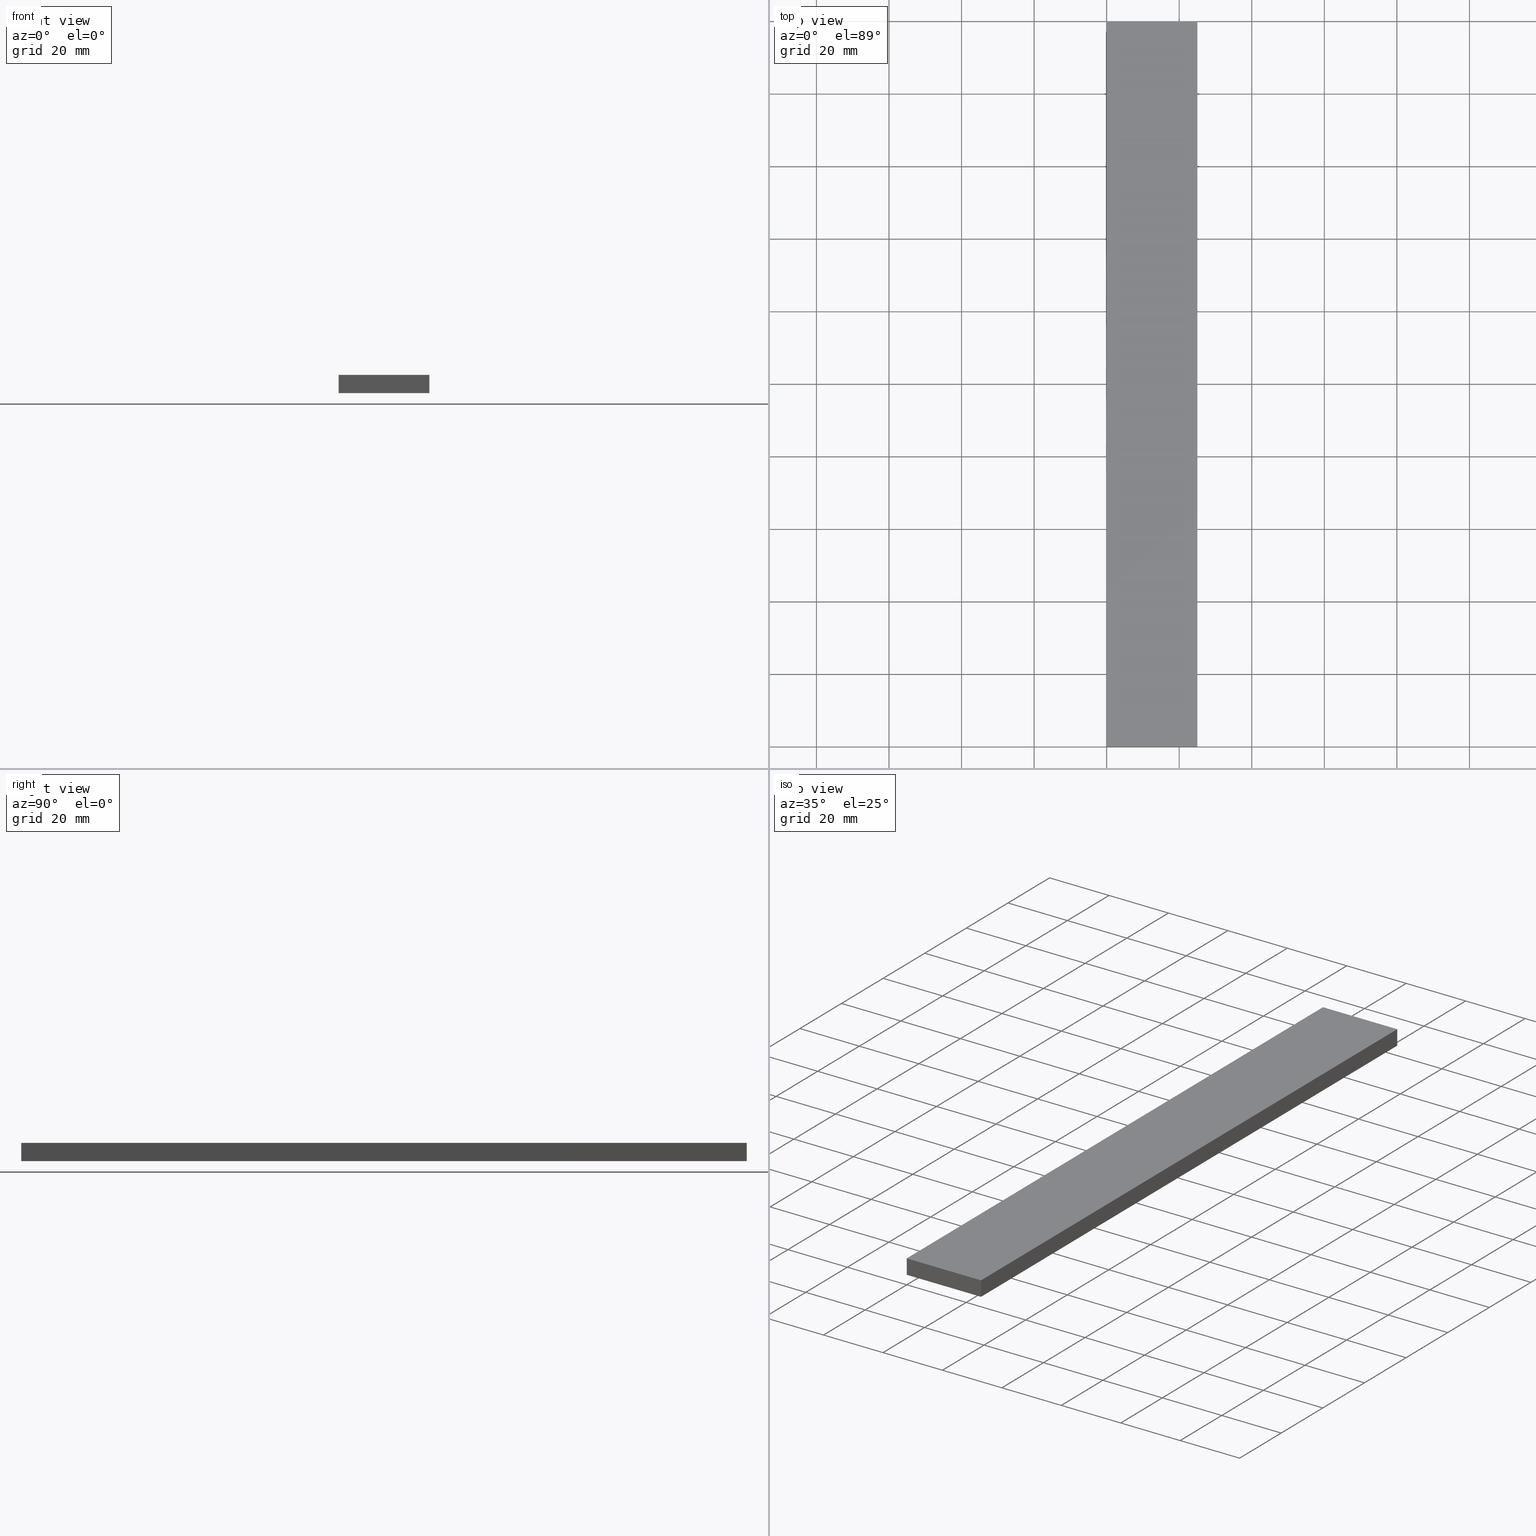
[diagram: canonical four-view strip — front | top / right | iso, engineering-drawing reading convention]
A machine part, canonical four-view strip (front | top / right | iso — engineering-drawing reading convention). The complete STEP part file that produces these views, byte-faithful:
ISO-10303-21;
HEADER;
FILE_DESCRIPTION (( 'STEP AP214' ),
    '1' );
FILE_NAME ('TM_340W_5.STEP',
    '2016-05-09T07:24:44',
    ( '' ),
    ( '' ),
    'SwSTEP 2.0',
    'SolidWorks 2015',
    '' );
FILE_SCHEMA (( 'AUTOMOTIVE_DESIGN' ));
ENDSEC;

DATA;
#1 = COLOUR_RGB ( '',0.7921568627450980000, 0.8196078431372548800, 0.9333333333333333500 ) ;
#2 = PRODUCT_DEFINITION_SHAPE ( 'NONE', 'NONE',  #239 ) ;
#3 = PRODUCT ( 'TM_340W_5', 'TM_340W_5', '', ( #109 ) ) ;
#4 = ORIENTED_EDGE ( 'NONE', *, *, #191, .F. ) ;
#5 = CARTESIAN_POINT ( 'NONE',  ( 25.00000000000000000, 0.0000000000000000000, 5.000000000000000000 ) ) ;
#6 = EDGE_CURVE ( 'NONE', #119, #28, #224, .T. ) ;
#7 =( GEOMETRIC_REPRESENTATION_CONTEXT ( 3 ) GLOBAL_UNCERTAINTY_ASSIGNED_CONTEXT ( ( #51 ) ) GLOBAL_UNIT_ASSIGNED_CONTEXT ( ( #80, #79, #78 ) ) REPRESENTATION_CONTEXT ( 'NONE', 'WORKASPACE' ) );
#8 = APPLICATION_CONTEXT ( 'automotive_design' ) ;
#9 = ORIENTED_EDGE ( 'NONE', *, *, #191, .T. ) ;
#10 = FILL_AREA_STYLE ('',( #177 ) ) ;
#11 = AXIS2_PLACEMENT_3D ( 'NONE', #56, #233, #107 ) ;
#12 = DIRECTION ( 'NONE',  ( 0.0000000000000000000, -1.000000000000000000, 0.0000000000000000000 ) ) ;
#13 = DIRECTION ( 'NONE',  ( 0.0000000000000000000, -1.000000000000000000, 0.0000000000000000000 ) ) ;
#14 = EDGE_LOOP ( 'NONE', ( #140, #151, #163, #15 ) ) ;
#15 = ORIENTED_EDGE ( 'NONE', *, *, #232, .F. ) ;
#16 = CARTESIAN_POINT ( 'NONE',  ( 25.00000000000000000, 200.0000000000000000, 5.000000000000000000 ) ) ;
#17 = VECTOR ( 'NONE', #115, 1000.000000000000000 ) ;
#18 = ORIENTED_EDGE ( 'NONE', *, *, #212, .F. ) ;
#19 = EDGE_CURVE ( 'NONE', #49, #147, #154, .T. ) ;
#20 = LINE ( 'NONE', #116, #227 ) ;
#21 = DIRECTION ( 'NONE',  ( 1.000000000000000000, 0.0000000000000000000, 0.0000000000000000000 ) ) ;
#22 = APPLICATION_PROTOCOL_DEFINITION ( 'draft international standard', 'automotive_design', 1998, #8 ) ;
#23 = ORIENTED_EDGE ( 'NONE', *, *, #187, .T. ) ;
#24 = PRODUCT_CONTEXT ( 'NONE', #8, 'mechanical' ) ;
#25 = DIRECTION ( 'NONE',  ( 1.000000000000000000, 0.0000000000000000000, 0.0000000000000000000 ) ) ;
#26 = LINE ( 'NONE', #121, #180 ) ;
#27 = AXIS2_PLACEMENT_3D ( 'NONE', #128, #185, #55 ) ;
#28 = VERTEX_POINT ( 'NONE', #117 ) ;
#29 =( NAMED_UNIT ( * ) PLANE_ANGLE_UNIT ( ) SI_UNIT ( $, .RADIAN. ) );
#30 = SURFACE_STYLE_USAGE ( .BOTH. , #113 ) ;
#31 = DIRECTION ( 'NONE',  ( -0.0000000000000000000, 1.000000000000000000, 0.0000000000000000000 ) ) ;
#32 = ITEM_DEFINED_TRANSFORMATION ( 'NONE', 'NONE', #48,  #195 ) ;
#33 = VECTOR ( 'NONE', #155, 1000.000000000000000 ) ;
#34 = VECTOR ( 'NONE', #12, 1000.000000000000000 ) ;
#35 = PRODUCT_DEFINITION_SHAPE ( 'NONE', 'NONE',  #84 ) ;
#36 = AXIS2_PLACEMENT_3D ( 'NONE', #65, #54, #159 ) ;
#37 = DIRECTION ( 'NONE',  ( 1.000000000000000000, 0.0000000000000000000, 0.0000000000000000000 ) ) ;
#38 = APPLICATION_CONTEXT ( 'automotive_design' ) ;
#39 = EDGE_LOOP ( 'NONE', ( #238, #85, #18, #53 ) ) ;
#40 = FACE_OUTER_BOUND ( 'NONE', #126, .T. ) ;
#41 = STYLED_ITEM ( 'NONE', ( #146 ), #87 ) ;
#42 = DIRECTION ( 'NONE',  ( 0.0000000000000000000, 0.0000000000000000000, -1.000000000000000000 ) ) ;
#43 = ORIENTED_EDGE ( 'NONE', *, *, #6, .T. ) ;
#44 =( NAMED_UNIT ( * ) SI_UNIT ( $, .STERADIAN. ) SOLID_ANGLE_UNIT ( ) );
#45 = PLANE ( 'NONE',  #157 ) ;
#46 = DIRECTION ( 'NONE',  ( 0.0000000000000000000, 0.0000000000000000000, 1.000000000000000000 ) ) ;
#47 = VECTOR ( 'NONE', #59, 1000.000000000000000 ) ;
#48 = AXIS2_PLACEMENT_3D ( 'NONE', #237, #46, #193 ) ;
#49 = VERTEX_POINT ( 'NONE', #199 ) ;
#50 = AXIS2_PLACEMENT_3D ( 'NONE', #76, #31, #21 ) ;
#51 = UNCERTAINTY_MEASURE_WITH_UNIT (LENGTH_MEASURE( 1.000000000000000100E-005 ), #80, 'distance_accuracy_value', 'NONE');
#52 = ORIENTED_EDGE ( 'NONE', *, *, #19, .T. ) ;
#53 = ORIENTED_EDGE ( 'NONE', *, *, #179, .T. ) ;
#54 = DIRECTION ( 'NONE',  ( 0.0000000000000000000, 0.0000000000000000000, 1.000000000000000000 ) ) ;
#55 = DIRECTION ( 'NONE',  ( 1.000000000000000000, 0.0000000000000000000, 0.0000000000000000000 ) ) ;
#56 = CARTESIAN_POINT ( 'NONE',  ( 0.0000000000000000000, 1000.000000000000000, 5.000000000000000000 ) ) ;
#57 = FACE_OUTER_BOUND ( 'NONE', #172, .T. ) ;
#58 =( GEOMETRIC_REPRESENTATION_CONTEXT ( 3 ) GLOBAL_UNCERTAINTY_ASSIGNED_CONTEXT ( ( #97 ) ) GLOBAL_UNIT_ASSIGNED_CONTEXT ( ( #72, #171, #189 ) ) REPRESENTATION_CONTEXT ( 'NONE', 'WORKASPACE' ) );
#59 = DIRECTION ( 'NONE',  ( 0.0000000000000000000, -1.000000000000000000, 0.0000000000000000000 ) ) ;
#60 = VERTEX_POINT ( 'NONE', #184 ) ;
#61 =( NAMED_UNIT ( * ) SI_UNIT ( $, .STERADIAN. ) SOLID_ANGLE_UNIT ( ) );
#62 = PRESENTATION_LAYER_ASSIGNMENT (  '', '', ( #41 ) ) ;
#63 = VECTOR ( 'NONE', #215, 1000.000000000000000 ) ;
#64 = EDGE_LOOP ( 'NONE', ( #9, #66, #111, #106 ) ) ;
#65 = CARTESIAN_POINT ( 'NONE',  ( 0.0000000000000000000, 0.0000000000000000000, 0.0000000000000000000 ) ) ;
#66 = ORIENTED_EDGE ( 'NONE', *, *, #212, .T. ) ;
#67 = PLANE ( 'NONE',  #134 ) ;
#68 = VECTOR ( 'NONE', #198, 1000.000000000000000 ) ;
#69 = APPLICATION_PROTOCOL_DEFINITION ( 'draft international standard', 'automotive_design', 1998, #38 ) ;
#70 = ADVANCED_FACE ( 'NONE', ( #95 ), #165, .F. ) ;
#71 = AXIS2_PLACEMENT_3D ( 'NONE', #100, #170, #37 ) ;
#72 =( LENGTH_UNIT ( ) NAMED_UNIT ( * ) SI_UNIT ( .MILLI., .METRE. ) );
#73 = ORIENTED_EDGE ( 'NONE', *, *, #219, .F. ) ;
#74 = ADVANCED_FACE ( 'NONE', ( #236 ), #129, .F. ) ;
#75 = ADVANCED_FACE ( 'NONE', ( #93 ), #164, .F. ) ;
#76 = CARTESIAN_POINT ( 'NONE',  ( 0.0000000000000000000, 0.0000000000000000000, 0.0000000000000000000 ) ) ;
#77 = MECHANICAL_DESIGN_GEOMETRIC_PRESENTATION_REPRESENTATION (  '', ( #41 ), #94 ) ;
#78 =( NAMED_UNIT ( * ) SI_UNIT ( $, .STERADIAN. ) SOLID_ANGLE_UNIT ( ) );
#79 =( NAMED_UNIT ( * ) PLANE_ANGLE_UNIT ( ) SI_UNIT ( $, .RADIAN. ) );
#80 =( LENGTH_UNIT ( ) NAMED_UNIT ( * ) SI_UNIT ( .MILLI., .METRE. ) );
#81 = CARTESIAN_POINT ( 'NONE',  ( 0.0000000000000000000, 1000.000000000000000, 0.0000000000000000000 ) ) ;
#82 = CARTESIAN_POINT ( 'NONE',  ( 25.00000000000000000, 200.0000000000000000, 5.000000000000000000 ) ) ;
#83 = MECHANICAL_DESIGN_GEOMETRIC_PRESENTATION_REPRESENTATION (  '', ( #207 ), #7 ) ;
#84 = PRODUCT_DEFINITION ( 'UNKNOWN', '', #149, #161 ) ;
#85 = ORIENTED_EDGE ( 'NONE', *, *, #6, .F. ) ;
#86 = CARTESIAN_POINT ( 'NONE',  ( 25.00000000000000000, 200.0000000000000000, 0.0000000000000000000 ) ) ;
#87 = MANIFOLD_SOLID_BREP ( '���߰�1', #226 ) ;
#88 = SURFACE_STYLE_USAGE ( .BOTH. , #89 ) ;
#89 = SURFACE_SIDE_STYLE ('',( #148 ) ) ;
#90 = FILL_AREA_STYLE ('',( #211 ) ) ;
#91 = SHAPE_DEFINITION_REPRESENTATION ( #35, #230 ) ;
#92 = LINE ( 'NONE', #101, #168 ) ;
#93 = FACE_OUTER_BOUND ( 'NONE', #14, .T. ) ;
#94 =( GEOMETRIC_REPRESENTATION_CONTEXT ( 3 ) GLOBAL_UNCERTAINTY_ASSIGNED_CONTEXT ( ( #131 ) ) GLOBAL_UNIT_ASSIGNED_CONTEXT ( ( #225, #29, #44 ) ) REPRESENTATION_CONTEXT ( 'NONE', 'WORKASPACE' ) );
#95 = FACE_OUTER_BOUND ( 'NONE', #39, .T. ) ;
#96 = APPLICATION_CONTEXT ( 'automotive_design' ) ;
#97 = UNCERTAINTY_MEASURE_WITH_UNIT (LENGTH_MEASURE( 1.000000000000000100E-005 ), #72, 'distance_accuracy_value', 'NONE');
#98 = ORIENTED_EDGE ( 'NONE', *, *, #150, .T. ) ;
#99 = PRODUCT_RELATED_PRODUCT_CATEGORY ( 'part', '', ( #214 ) ) ;
#100 = CARTESIAN_POINT ( 'NONE',  ( 0.0000000000000000000, 0.0000000000000000000, 0.0000000000000000000 ) ) ;
#101 = CARTESIAN_POINT ( 'NONE',  ( 0.0000000000000000000, 0.0000000000000000000, 5.000000000000000000 ) ) ;
#102 = DIRECTION ( 'NONE',  ( 1.000000000000000000, 0.0000000000000000000, 0.0000000000000000000 ) ) ;
#103 = DIRECTION ( 'NONE',  ( 0.0000000000000000000, 0.0000000000000000000, 1.000000000000000000 ) ) ;
#104 = ORIENTED_EDGE ( 'NONE', *, *, #150, .F. ) ;
#105 = CARTESIAN_POINT ( 'NONE',  ( 0.0000000000000000000, 0.0000000000000000000, 0.0000000000000000000 ) ) ;
#106 = ORIENTED_EDGE ( 'NONE', *, *, #173, .T. ) ;
#107 = DIRECTION ( 'NONE',  ( -1.000000000000000000, 0.0000000000000000000, 0.0000000000000000000 ) ) ;
#108 = LINE ( 'NONE', #86, #63 ) ;
#109 = PRODUCT_CONTEXT ( 'NONE', #38, 'mechanical' ) ;
#110 = PRODUCT_DEFINITION ( 'UNKNOWN', '', #125, #133 ) ;
#111 = ORIENTED_EDGE ( 'NONE', *, *, #219, .T. ) ;
#112 = CARTESIAN_POINT ( 'NONE',  ( 0.0000000000000000000, 1000.000000000000000, 5.000000000000000000 ) ) ;
#113 = SURFACE_SIDE_STYLE ('',( #235 ) ) ;
#114 = LINE ( 'NONE', #182, #174 ) ;
#115 = DIRECTION ( 'NONE',  ( 0.0000000000000000000, -1.000000000000000000, 0.0000000000000000000 ) ) ;
#116 = CARTESIAN_POINT ( 'NONE',  ( 25.00000000000000000, 0.0000000000000000000, 0.0000000000000000000 ) ) ;
#117 = CARTESIAN_POINT ( 'NONE',  ( 25.00000000000000000, 0.0000000000000000000, 5.000000000000000000 ) ) ;
#118 = APPLICATION_CONTEXT ( 'automotive_design' ) ;
#119 = VERTEX_POINT ( 'NONE', #82 ) ;
#120 = CARTESIAN_POINT ( 'NONE',  ( 0.0000000000000000000, 200.0000000000000000, 0.0000000000000000000 ) ) ;
#121 = CARTESIAN_POINT ( 'NONE',  ( 0.0000000000000000000, 200.0000000000000000, 5.000000000000000000 ) ) ;
#122 = ADVANCED_FACE ( 'NONE', ( #40 ), #67, .F. ) ;
#123 = ADVANCED_BREP_SHAPE_REPRESENTATION ( '', ( #87, #195 ), #169 ) ;
#124 = LINE ( 'NONE', #16, #33 ) ;
#125 = PRODUCT_DEFINITION_FORMATION_WITH_SPECIFIED_SOURCE ( 'ANY', '', #3, .NOT_KNOWN. ) ;
#126 = EDGE_LOOP ( 'NONE', ( #160, #104, #73, #43 ) ) ;
#127 = CARTESIAN_POINT ( 'NONE',  ( 0.0000000000000000000, 0.0000000000000000000, 0.0000000000000000000 ) ) ;
#128 = CARTESIAN_POINT ( 'NONE',  ( 25.00000000000000000, 1000.000000000000000, 0.0000000000000000000 ) ) ;
#129 = PLANE ( 'NONE',  #27 ) ;
#130 = VERTEX_POINT ( 'NONE', #234 ) ;
#131 = UNCERTAINTY_MEASURE_WITH_UNIT (LENGTH_MEASURE( 1.000000000000000100E-005 ), #225, 'distance_accuracy_value', 'NONE');
#132 = VECTOR ( 'NONE', #42, 1000.000000000000000 ) ;
#133 = PRODUCT_DEFINITION_CONTEXT ( 'detailed design', #96, 'design' ) ;
#134 = AXIS2_PLACEMENT_3D ( 'NONE', #138, #194, #186 ) ;
#135 = ORIENTED_EDGE ( 'NONE', *, *, #19, .F. ) ;
#136 = ADVANCED_FACE ( 'NONE', ( #197 ), #45, .T. ) ;
#137 = PRESENTATION_STYLE_ASSIGNMENT (( #88 ) ) ;
#138 = CARTESIAN_POINT ( 'NONE',  ( 25.00000000000000000, 1000.000000000000000, 5.000000000000000000 ) ) ;
#139 = DIRECTION ( 'NONE',  ( -1.000000000000000000, 0.0000000000000000000, 0.0000000000000000000 ) ) ;
#140 = ORIENTED_EDGE ( 'NONE', *, *, #187, .F. ) ;
#141 = PRODUCT_RELATED_PRODUCT_CATEGORY ( 'part', '', ( #3 ) ) ;
#142 = UNCERTAINTY_MEASURE_WITH_UNIT (LENGTH_MEASURE( 1.000000000000000100E-005 ), #206, 'distance_accuracy_value', 'NONE');
#143 = DIRECTION ( 'NONE',  ( -0.0000000000000000000, 1.000000000000000000, 0.0000000000000000000 ) ) ;
#144 = ADVANCED_FACE ( 'NONE', ( #57 ), #166, .F. ) ;
#145 = PRODUCT_DEFINITION_SHAPE ( 'NONE', 'NONE',  #110 ) ;
#146 = PRESENTATION_STYLE_ASSIGNMENT (( #30 ) ) ;
#147 = VERTEX_POINT ( 'NONE', #127 ) ;
#148 = SURFACE_STYLE_FILL_AREA ( #90 ) ;
#149 = PRODUCT_DEFINITION_FORMATION_WITH_SPECIFIED_SOURCE ( 'ANY', '', #214, .NOT_KNOWN. ) ;
#150 = EDGE_CURVE ( 'NONE', #130, #231, #188, .T. ) ;
#151 = ORIENTED_EDGE ( 'NONE', *, *, #200, .F. ) ;
#152 = SHAPE_REPRESENTATION_RELATIONSHIP ( 'NONE' , 'NONE' ,  #230, #123 ) ;
#153 = APPLICATION_PROTOCOL_DEFINITION ( 'draft international standard', 'automotive_design', 1998, #96 ) ;
#154 = LINE ( 'NONE', #81, #34 ) ;
#155 = DIRECTION ( 'NONE',  ( 0.0000000000000000000, 0.0000000000000000000, -1.000000000000000000 ) ) ;
#156 = APPLICATION_PROTOCOL_DEFINITION ( 'draft international standard', 'automotive_design', 1998, #118 ) ;
#157 = AXIS2_PLACEMENT_3D ( 'NONE', #120, #143, #203 ) ;
#158 = DIRECTION ( 'NONE',  ( 0.0000000000000000000, 0.0000000000000000000, 1.000000000000000000 ) ) ;
#159 = DIRECTION ( 'NONE',  ( 1.000000000000000000, 0.0000000000000000000, 0.0000000000000000000 ) ) ;
#160 = ORIENTED_EDGE ( 'NONE', *, *, #205, .T. ) ;
#161 = PRODUCT_DEFINITION_CONTEXT ( 'detailed design', #118, 'design' ) ;
#162 = LINE ( 'NONE', #216, #68 ) ;
#163 = ORIENTED_EDGE ( 'NONE', *, *, #205, .F. ) ;
#164 = PLANE ( 'NONE',  #50 ) ;
#165 = PLANE ( 'NONE',  #11 ) ;
#166 = PLANE ( 'NONE',  #181 ) ;
#167 = VECTOR ( 'NONE', #13, 1000.000000000000000 ) ;
#168 = VECTOR ( 'NONE', #25, 1000.000000000000000 ) ;
#169 =( GEOMETRIC_REPRESENTATION_CONTEXT ( 3 ) GLOBAL_UNCERTAINTY_ASSIGNED_CONTEXT ( ( #142 ) ) GLOBAL_UNIT_ASSIGNED_CONTEXT ( ( #206, #192, #61 ) ) REPRESENTATION_CONTEXT ( 'NONE', 'WORKASPACE' ) );
#170 = DIRECTION ( 'NONE',  ( 0.0000000000000000000, 0.0000000000000000000, 1.000000000000000000 ) ) ;
#171 =( NAMED_UNIT ( * ) PLANE_ANGLE_UNIT ( ) SI_UNIT ( $, .RADIAN. ) );
#172 = EDGE_LOOP ( 'NONE', ( #23, #190, #4, #52 ) ) ;
#173 = EDGE_CURVE ( 'NONE', #130, #49, #108, .T. ) ;
#174 = VECTOR ( 'NONE', #158, 1000.000000000000000 ) ;
#175 = CARTESIAN_POINT ( 'NONE',  ( 25.00000000000000000, 1000.000000000000000, 0.0000000000000000000 ) ) ;
#176 = DIRECTION ( 'NONE',  ( 1.000000000000000000, 0.0000000000000000000, 0.0000000000000000000 ) ) ;
#177 = FILL_AREA_STYLE_COLOUR ( '', #1 ) ;
#178 = DIRECTION ( 'NONE',  ( 1.000000000000000000, 0.0000000000000000000, 0.0000000000000000000 ) ) ;
#179 = EDGE_CURVE ( 'NONE', #208, #60, #213, .T. ) ;
#180 = VECTOR ( 'NONE', #178, 1000.000000000000000 ) ;
#181 = AXIS2_PLACEMENT_3D ( 'NONE', #220, #176, #202 ) ;
#182 = CARTESIAN_POINT ( 'NONE',  ( 0.0000000000000000000, 200.0000000000000000, 0.0000000000000000000 ) ) ;
#183 = SHAPE_DEFINITION_REPRESENTATION ( #145, #229 ) ;
#184 = CARTESIAN_POINT ( 'NONE',  ( 0.0000000000000000000, 0.0000000000000000000, 5.000000000000000000 ) ) ;
#185 = DIRECTION ( 'NONE',  ( 0.0000000000000000000, 0.0000000000000000000, 1.000000000000000000 ) ) ;
#186 = DIRECTION ( 'NONE',  ( 0.0000000000000000000, 0.0000000000000000000, 1.000000000000000000 ) ) ;
#187 = EDGE_CURVE ( 'NONE', #147, #60, #162, .T. ) ;
#188 = LINE ( 'NONE', #175, #17 ) ;
#189 =( NAMED_UNIT ( * ) SI_UNIT ( $, .STERADIAN. ) SOLID_ANGLE_UNIT ( ) );
#190 = ORIENTED_EDGE ( 'NONE', *, *, #179, .F. ) ;
#191 = EDGE_CURVE ( 'NONE', #49, #208, #114, .T. ) ;
#192 =( NAMED_UNIT ( * ) PLANE_ANGLE_UNIT ( ) SI_UNIT ( $, .RADIAN. ) );
#193 = DIRECTION ( 'NONE',  ( 1.000000000000000000, 0.0000000000000000000, 0.0000000000000000000 ) ) ;
#194 = DIRECTION ( 'NONE',  ( -1.000000000000000000, 0.0000000000000000000, 0.0000000000000000000 ) ) ;
#195 = AXIS2_PLACEMENT_3D ( 'NONE', #105, #103, #102 ) ;
#196 = CARTESIAN_POINT ( 'NONE',  ( 25.00000000000000000, 0.0000000000000000000, 0.0000000000000000000 ) ) ;
#197 = FACE_OUTER_BOUND ( 'NONE', #64, .T. ) ;
#198 = DIRECTION ( 'NONE',  ( 0.0000000000000000000, 0.0000000000000000000, 1.000000000000000000 ) ) ;
#199 = CARTESIAN_POINT ( 'NONE',  ( 0.0000000000000000000, 200.0000000000000000, 0.0000000000000000000 ) ) ;
#200 = EDGE_CURVE ( 'NONE', #231, #147, #20, .T. ) ;
#201 = CONTEXT_DEPENDENT_SHAPE_REPRESENTATION ( #209, #2 ) ;
#202 = DIRECTION ( 'NONE',  ( 0.0000000000000000000, 0.0000000000000000000, -1.000000000000000000 ) ) ;
#203 = DIRECTION ( 'NONE',  ( 1.000000000000000000, 0.0000000000000000000, 0.0000000000000000000 ) ) ;
#204 = ORIENTED_EDGE ( 'NONE', *, *, #200, .T. ) ;
#205 = EDGE_CURVE ( 'NONE', #28, #231, #221, .T. ) ;
#206 =( LENGTH_UNIT ( ) NAMED_UNIT ( * ) SI_UNIT ( .MILLI., .METRE. ) );
#207 = STYLED_ITEM ( 'NONE', ( #137 ), #123 ) ;
#208 = VERTEX_POINT ( 'NONE', #223 ) ;
#209 =( REPRESENTATION_RELATIONSHIP ('NONE','NONE', #229, #230 ) REPRESENTATION_RELATIONSHIP_WITH_TRANSFORMATION ( #32 )SHAPE_REPRESENTATION_RELATIONSHIP( ) );
#210 = EDGE_LOOP ( 'NONE', ( #204, #135, #217, #98 ) ) ;
#211 = FILL_AREA_STYLE_COLOUR ( '', #228 ) ;
#212 = EDGE_CURVE ( 'NONE', #208, #119, #26, .T. ) ;
#213 = LINE ( 'NONE', #112, #167 ) ;
#214 = PRODUCT ( 'rubber foam', 'rubber foam', '', ( #24 ) ) ;
#215 = DIRECTION ( 'NONE',  ( -1.000000000000000000, 0.0000000000000000000, 0.0000000000000000000 ) ) ;
#216 = CARTESIAN_POINT ( 'NONE',  ( 0.0000000000000000000, 0.0000000000000000000, 0.0000000000000000000 ) ) ;
#217 = ORIENTED_EDGE ( 'NONE', *, *, #173, .F. ) ;
#218 = CARTESIAN_POINT ( 'NONE',  ( 25.00000000000000000, 1000.000000000000000, 5.000000000000000000 ) ) ;
#219 = EDGE_CURVE ( 'NONE', #119, #130, #124, .T. ) ;
#220 = CARTESIAN_POINT ( 'NONE',  ( 0.0000000000000000000, 1000.000000000000000, 0.0000000000000000000 ) ) ;
#221 = LINE ( 'NONE', #5, #132 ) ;
#222 = PRESENTATION_LAYER_ASSIGNMENT (  '', '', ( #207 ) ) ;
#223 = CARTESIAN_POINT ( 'NONE',  ( 0.0000000000000000000, 200.0000000000000000, 5.000000000000000000 ) ) ;
#224 = LINE ( 'NONE', #218, #47 ) ;
#225 =( LENGTH_UNIT ( ) NAMED_UNIT ( * ) SI_UNIT ( .MILLI., .METRE. ) );
#226 = CLOSED_SHELL ( 'NONE', ( #144, #70, #122, #74, #136, #75 ) ) ;
#227 = VECTOR ( 'NONE', #139, 1000.000000000000000 ) ;
#228 = COLOUR_RGB ( '',0.7921568627450980000, 0.8196078431372548800, 0.9333333333333333500 ) ;
#229 = SHAPE_REPRESENTATION ( 'TM_340W_5', ( #71, #48 ), #58 ) ;
#230 = SHAPE_REPRESENTATION ( 'rubber foam', ( #195 ), #169 ) ;
#231 = VERTEX_POINT ( 'NONE', #196 ) ;
#232 = EDGE_CURVE ( 'NONE', #60, #28, #92, .T. ) ;
#233 = DIRECTION ( 'NONE',  ( 0.0000000000000000000, 0.0000000000000000000, -1.000000000000000000 ) ) ;
#234 = CARTESIAN_POINT ( 'NONE',  ( 25.00000000000000000, 200.0000000000000000, 0.0000000000000000000 ) ) ;
#235 = SURFACE_STYLE_FILL_AREA ( #10 ) ;
#236 = FACE_OUTER_BOUND ( 'NONE', #210, .T. ) ;
#237 = CARTESIAN_POINT ( 'NONE',  ( 0.0000000000000000000, 0.0000000000000000000, 0.0000000000000000000 ) ) ;
#238 = ORIENTED_EDGE ( 'NONE', *, *, #232, .T. ) ;
#239 = NEXT_ASSEMBLY_USAGE_OCCURRENCE ( 'NAUO1', ' ', ' ', #110, #84, $ ) ;
ENDSEC;
END-ISO-10303-21;
